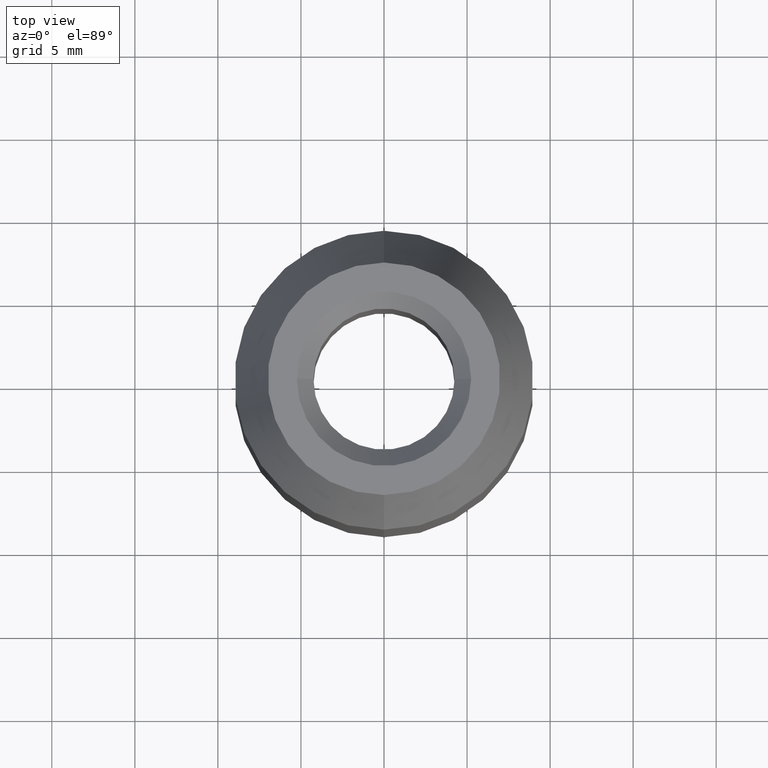
[diagram: clean part render]
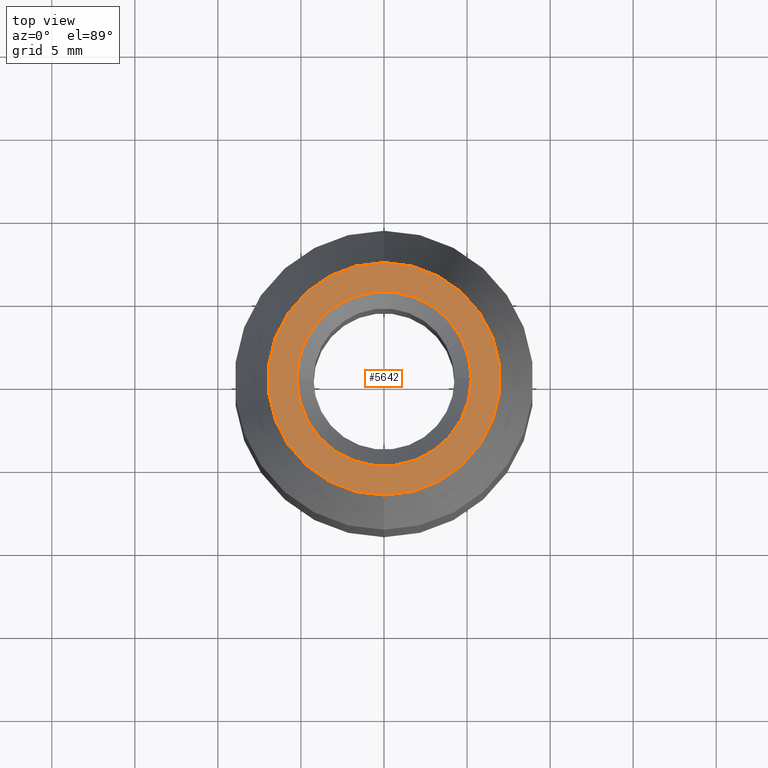
[diagram: same view with one face highlighted and labeled with its STEP entity id]
A machine part, top view. The second image highlights one B-rep face of the part: STEP entity #5642.
In plain terms, the highlighted planar face has unit normal (0, 0, -1).
Its self-contained STEP definition (entity closure, byte-faithful):
#99 = CARTESIAN_POINT ( 'NONE',  ( 9.797174393178819741E-16, -6.999999999999993783, 18.00000000000000000 ) ) ;
#743 = DIRECTION ( 'NONE',  ( 0.000000000000000000, 1.000000000000000000, 0.000000000000000000 ) ) ;
#1416 = CIRCLE ( 'NONE', #12206, 5.250000000000004441 ) ;
#1853 = DIRECTION ( 'NONE',  ( 0.000000000000000000, 2.139922160430262120E-32, -1.000000000000000000 ) ) ;
#2779 = CARTESIAN_POINT ( 'NONE',  ( 0.000000000000000000, 6.999999999999993783, 18.00000000000000000 ) ) ;
#3368 = VERTEX_POINT ( 'NONE', #99 ) ;
#3542 = EDGE_CURVE ( 'NONE', #7823, #9679, #1416, .T. ) ;
#3772 = CARTESIAN_POINT ( 'NONE',  ( -5.250000000000004441, 6.429395695523610069E-16, 18.00000000000000000 ) ) ;
#3774 = EDGE_LOOP ( 'NONE', ( #14415, #14655 ) ) ;
#3829 = CARTESIAN_POINT ( 'NONE',  ( 0.000000000000000000, -3.851859888774471706E-31, 18.00000000000000000 ) ) ;
#3890 = DIRECTION ( 'NONE',  ( 0.000000000000000000, 2.139922160430262120E-32, -1.000000000000000000 ) ) ;
#3972 = CIRCLE ( 'NONE', #4272, 6.999999999999993783 ) ;
#4272 = AXIS2_PLACEMENT_3D ( 'NONE', #12194, #5112, #5260 ) ;
#4769 = DIRECTION ( 'NONE',  ( -0.000000000000000000, -2.139922160430262120E-32, 1.000000000000000000 ) ) ;
#5112 = DIRECTION ( 'NONE',  ( -0.000000000000000000, -2.139922160430262120E-32, 1.000000000000000000 ) ) ;
#5260 = DIRECTION ( 'NONE',  ( 0.000000000000000000, -1.000000000000000000, 0.000000000000000000 ) ) ;
#5398 = EDGE_CURVE ( 'NONE', #9679, #7823, #7939, .T. ) ;
#5616 = DIRECTION ( 'NONE',  ( 0.000000000000000000, 1.000000000000000000, 0.000000000000000000 ) ) ;
#5642 = ADVANCED_FACE ( 'NONE', ( #6501, #13874 ), #7056, .F. ) ;
#6169 = CARTESIAN_POINT ( 'NONE',  ( 5.250000000000004441, 0.000000000000000000, 18.00000000000000000 ) ) ;
#6464 = AXIS2_PLACEMENT_3D ( 'NONE', #10176, #6688, #5616 ) ;
#6501 = FACE_BOUND ( 'NONE', #3774, .T. ) ;
#6688 = DIRECTION ( 'NONE',  ( 0.000000000000000000, 2.139922160430262120E-32, -1.000000000000000000 ) ) ;
#7056 = PLANE ( 'NONE',  #13887 ) ;
#7238 = DIRECTION ( 'NONE',  ( 0.000000000000000000, -1.000000000000000000, 0.000000000000000000 ) ) ;
#7608 = EDGE_CURVE ( 'NONE', #3368, #13226, #3972, .T. ) ;
#7823 = VERTEX_POINT ( 'NONE', #3772 ) ;
#7939 = CIRCLE ( 'NONE', #6464, 5.250000000000004441 ) ;
#8735 = EDGE_LOOP ( 'NONE', ( #14073, #11986 ) ) ;
#9337 = CARTESIAN_POINT ( 'NONE',  ( 0.000000000000000000, 6.999999999999993783, 18.00000000000000000 ) ) ;
#9480 = DIRECTION ( 'NONE',  ( 0.000000000000000000, 1.000000000000000000, 2.139922160430262120E-32 ) ) ;
#9542 = EDGE_CURVE ( 'NONE', #13226, #3368, #13828, .T. ) ;
#9679 = VERTEX_POINT ( 'NONE', #6169 ) ;
#10176 = CARTESIAN_POINT ( 'NONE',  ( 0.000000000000000000, 0.000000000000000000, 18.00000000000000000 ) ) ;
#11986 = ORIENTED_EDGE ( 'NONE', *, *, #7608, .T. ) ;
#12194 = CARTESIAN_POINT ( 'NONE',  ( 0.000000000000000000, -3.851859888774471706E-31, 18.00000000000000000 ) ) ;
#12206 = AXIS2_PLACEMENT_3D ( 'NONE', #13279, #1853, #743 ) ;
#13226 = VERTEX_POINT ( 'NONE', #2779 ) ;
#13279 = CARTESIAN_POINT ( 'NONE',  ( 0.000000000000000000, 0.000000000000000000, 18.00000000000000000 ) ) ;
#13828 = CIRCLE ( 'NONE', #14030, 6.999999999999993783 ) ;
#13874 = FACE_OUTER_BOUND ( 'NONE', #8735, .T. ) ;
#13887 = AXIS2_PLACEMENT_3D ( 'NONE', #9337, #3890, #9480 ) ;
#14030 = AXIS2_PLACEMENT_3D ( 'NONE', #3829, #4769, #7238 ) ;
#14073 = ORIENTED_EDGE ( 'NONE', *, *, #9542, .T. ) ;
#14415 = ORIENTED_EDGE ( 'NONE', *, *, #5398, .T. ) ;
#14655 = ORIENTED_EDGE ( 'NONE', *, *, #3542, .T. ) ;